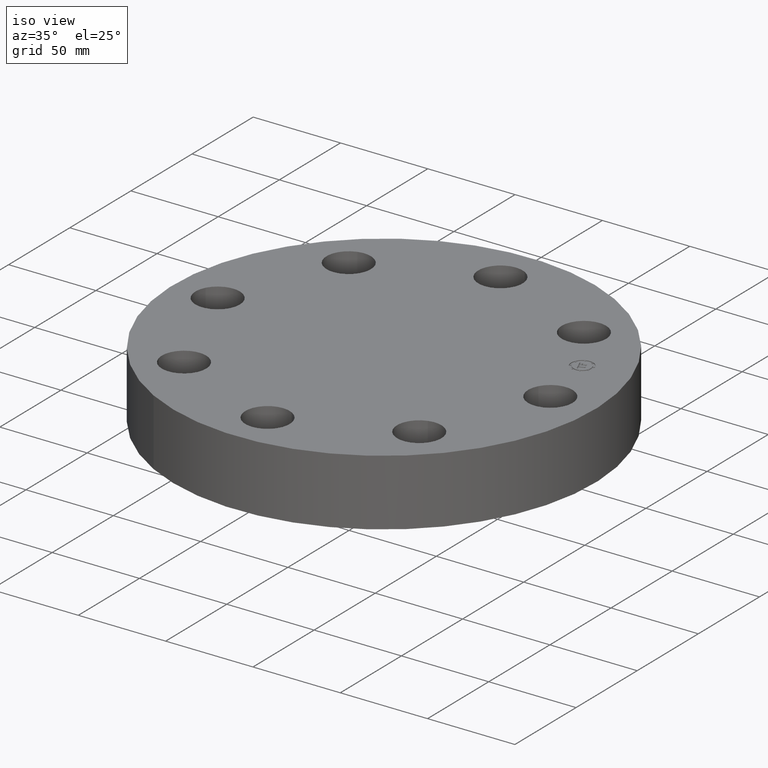
[diagram: clean part render]
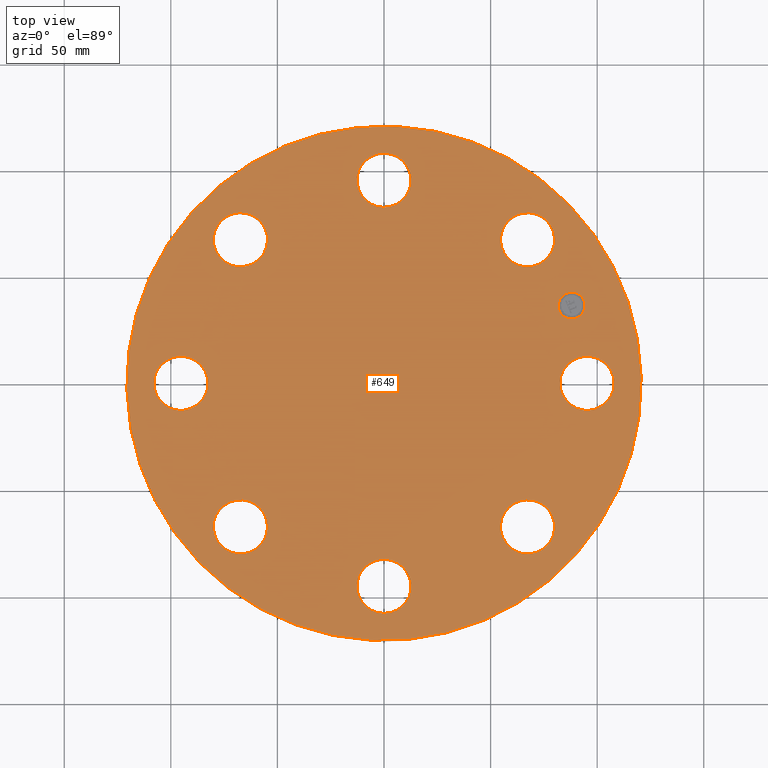
[diagram: tour spotlight — one face highlighted and labeled with its STEP entity id]
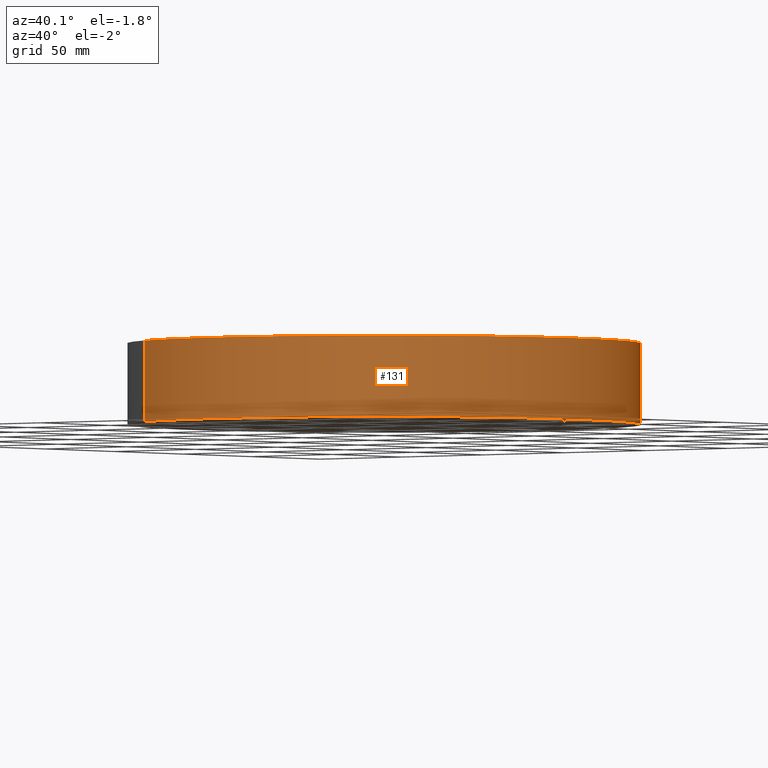
[diagram: tour spotlight — one face highlighted and labeled with its STEP entity id]
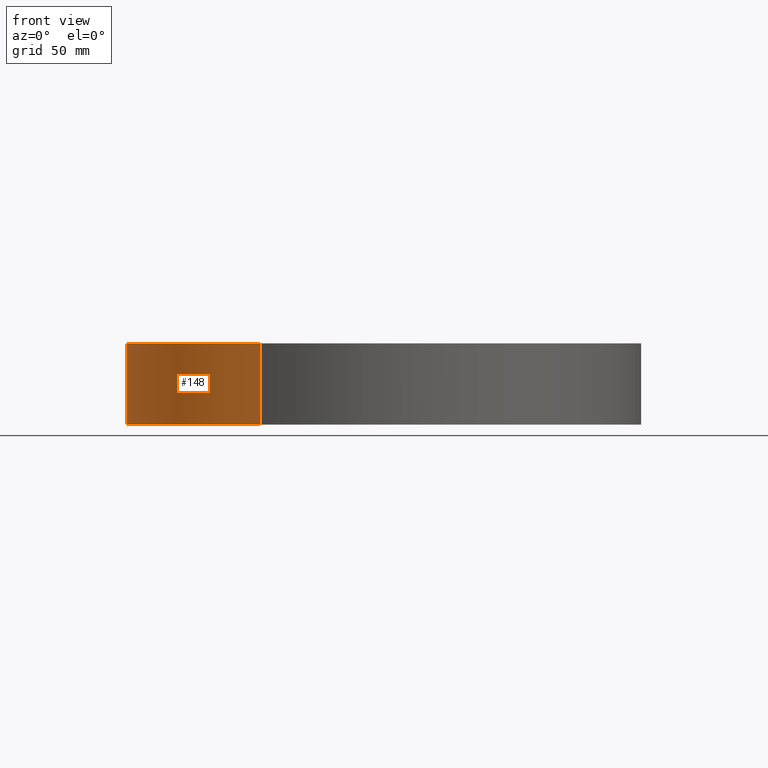
[diagram: tour spotlight — one face highlighted and labeled with its STEP entity id]
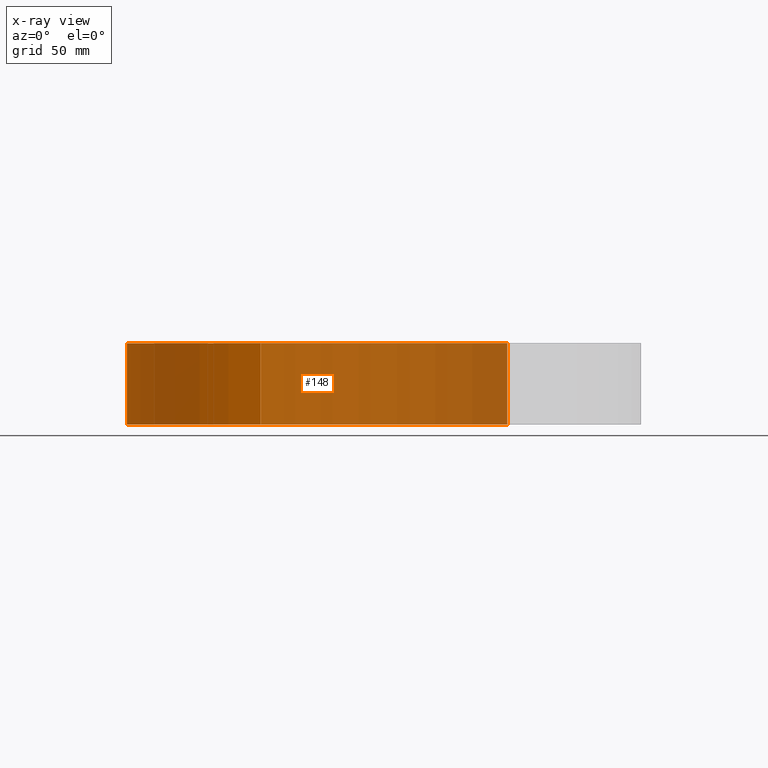
[diagram: x-ray of the same camera — body ghosted, this tour face saturated]
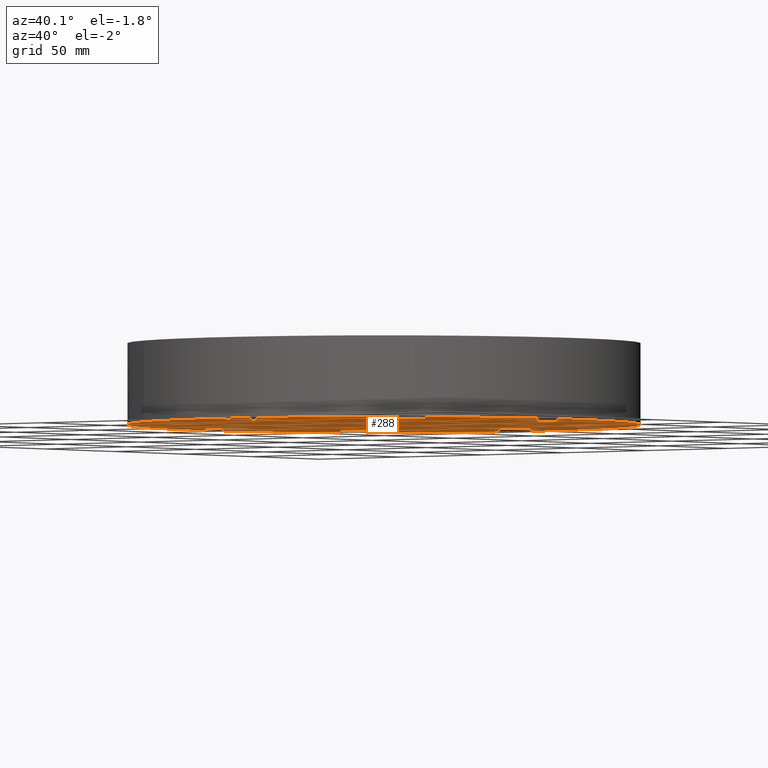
[diagram: tour spotlight — one face highlighted and labeled with its STEP entity id]
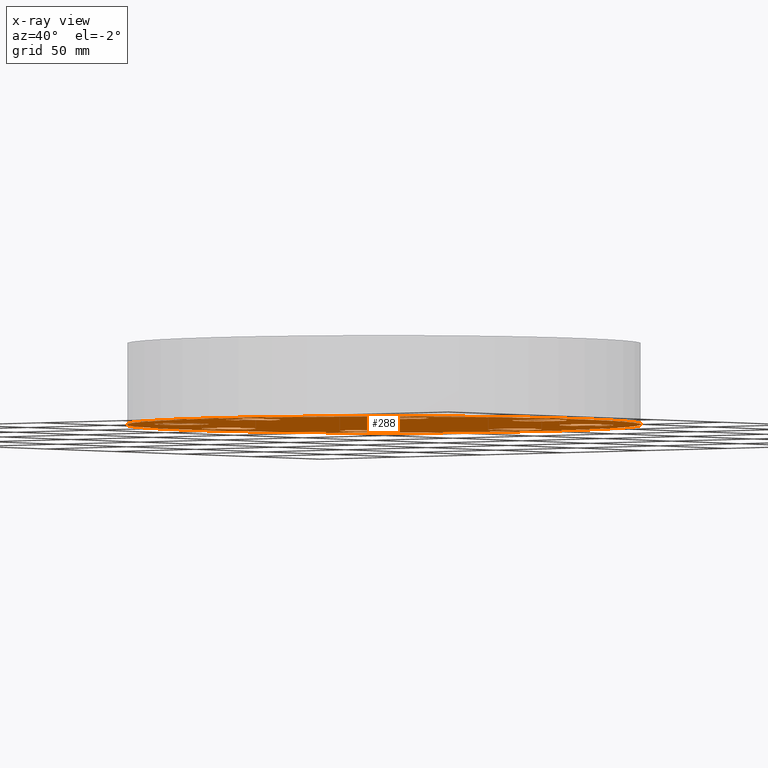
[diagram: x-ray of the same camera — body ghosted, this tour face saturated]
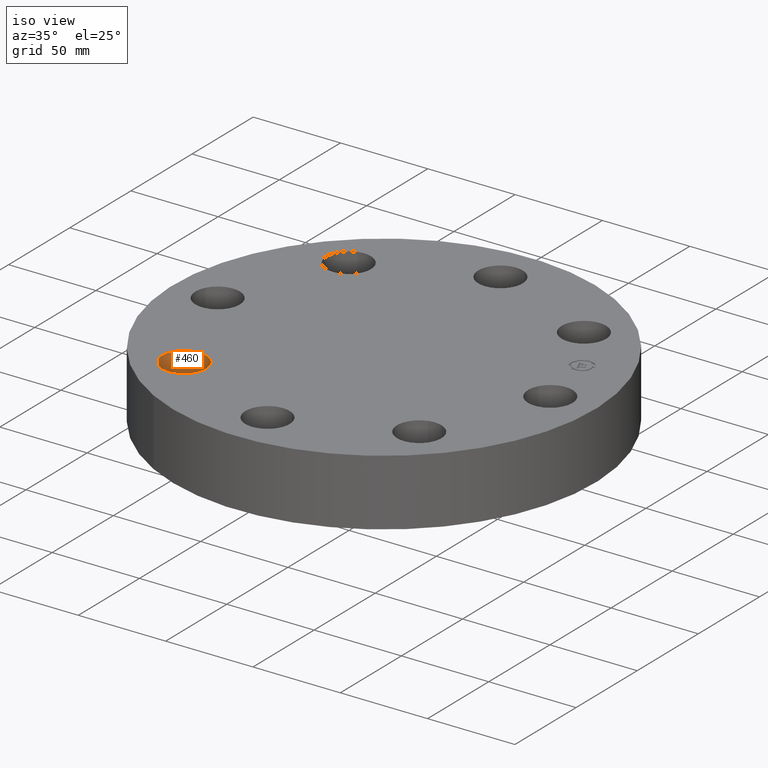
[diagram: tour spotlight — one face highlighted and labeled with its STEP entity id]
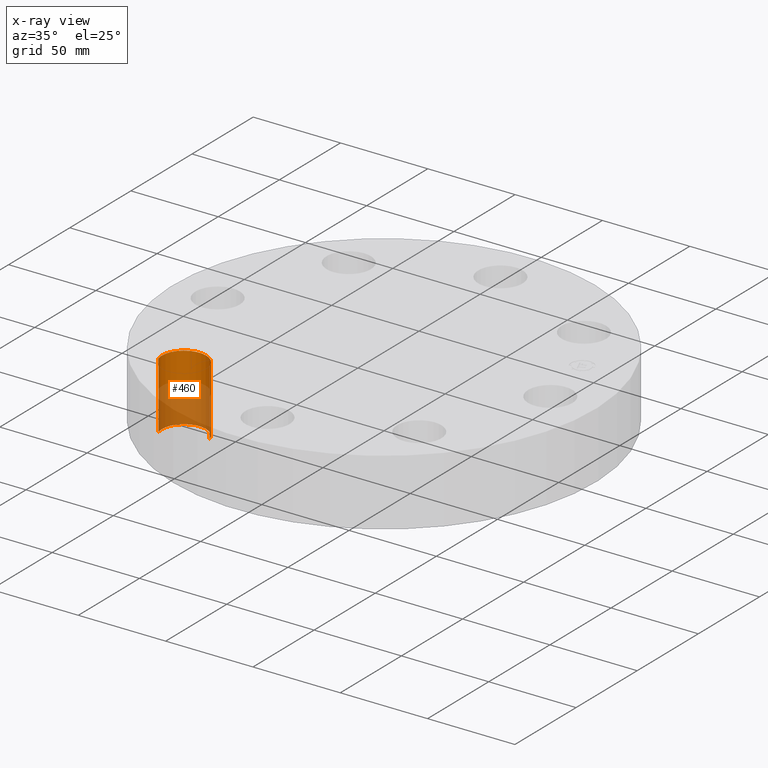
[diagram: x-ray of the same camera — body ghosted, this tour face saturated]
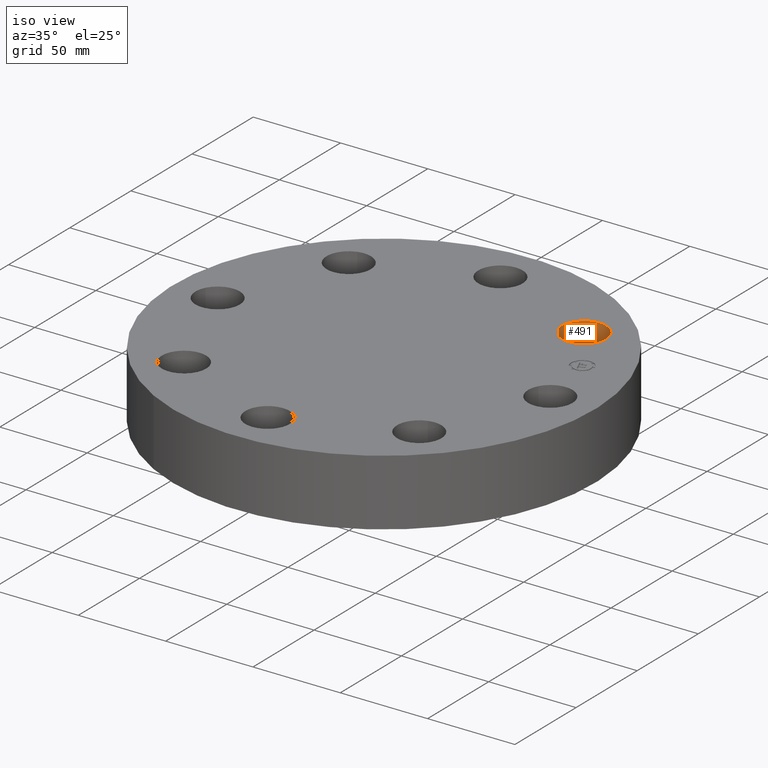
[diagram: tour spotlight — one face highlighted and labeled with its STEP entity id]
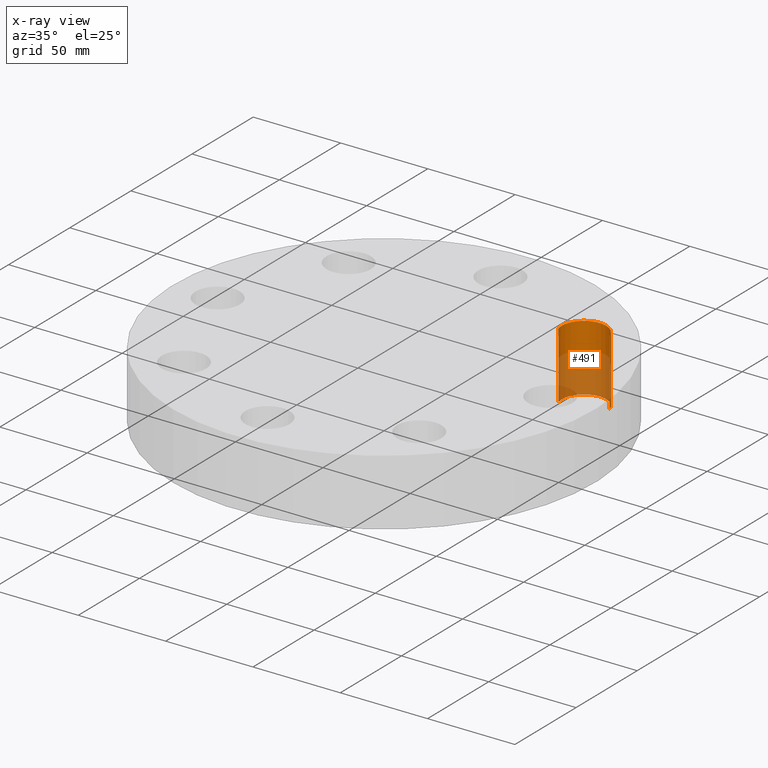
[diagram: x-ray of the same camera — body ghosted, this tour face saturated]
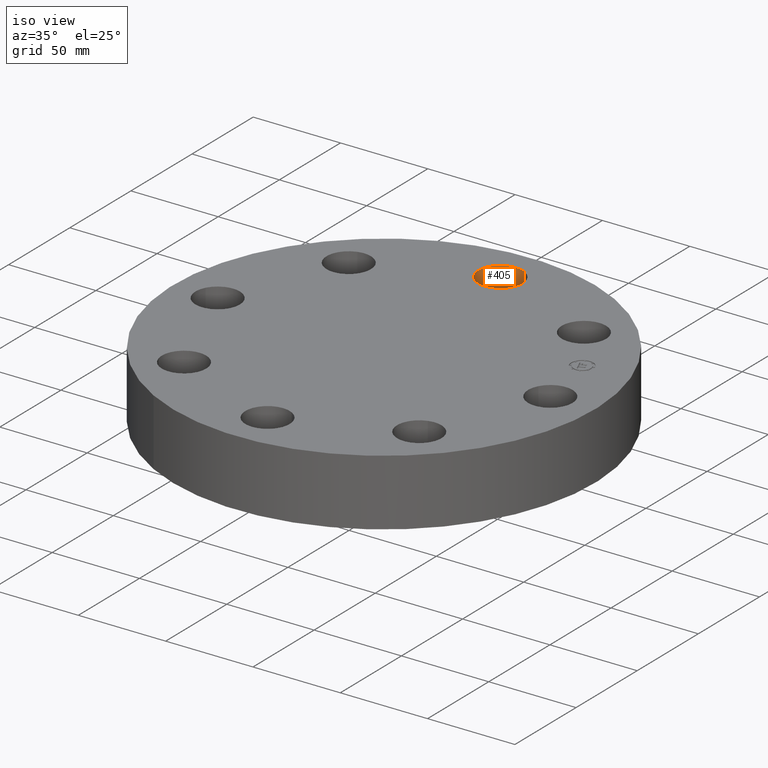
[diagram: tour spotlight — one face highlighted and labeled with its STEP entity id]
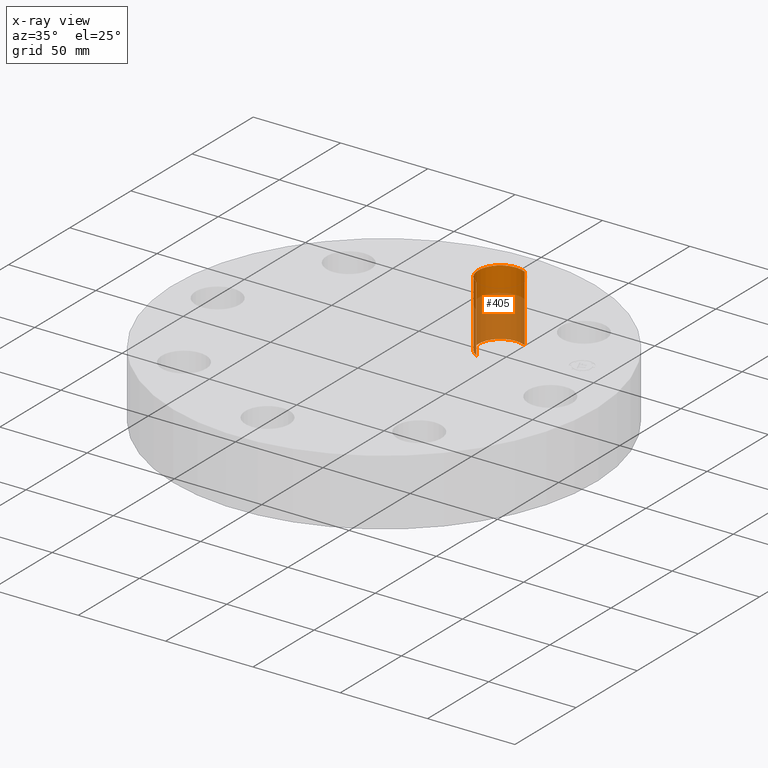
[diagram: x-ray of the same camera — body ghosted, this tour face saturated]
A machine part: a face-by-face anatomy tour. The part has 405 B-rep faces; the first image is the clean iso view, then the 7 largest visible faces are spotlighted one at a time (largest first), each with its STEP entity span.

Face 1 — top view, entity #649. In plain terms, the highlighted planar face has unit normal (0, 0, -1).
Definition (entity closure, byte-faithful):
#65=AXIS2_PLACEMENT_3D('Circle Axis2P3D',#63,#64,$) ;
#82=AXIS2_PLACEMENT_3D('Circle Axis2P3D',#80,#81,$) ;
#115=AXIS2_PLACEMENT_3D('Circle Axis2P3D',#113,#114,$) ;
#139=AXIS2_PLACEMENT_3D('Circle Axis2P3D',#137,#138,$) ;
#310=AXIS2_PLACEMENT_3D('Circle Axis2P3D',#308,#309,$) ;
#322=AXIS2_PLACEMENT_3D('Circle Axis2P3D',#320,#321,$) ;
#353=AXIS2_PLACEMENT_3D('Circle Axis2P3D',#351,#352,$) ;
#365=AXIS2_PLACEMENT_3D('Circle Axis2P3D',#363,#364,$) ;
#396=AXIS2_PLACEMENT_3D('Circle Axis2P3D',#394,#395,$) ;
#408=AXIS2_PLACEMENT_3D('Circle Axis2P3D',#406,#407,$) ;
#439=AXIS2_PLACEMENT_3D('Circle Axis2P3D',#437,#438,$) ;
#451=AXIS2_PLACEMENT_3D('Circle Axis2P3D',#449,#450,$) ;
#482=AXIS2_PLACEMENT_3D('Circle Axis2P3D',#480,#481,$) ;
#494=AXIS2_PLACEMENT_3D('Circle Axis2P3D',#492,#493,$) ;
#525=AXIS2_PLACEMENT_3D('Circle Axis2P3D',#523,#524,$) ;
#537=AXIS2_PLACEMENT_3D('Circle Axis2P3D',#535,#536,$) ;
#568=AXIS2_PLACEMENT_3D('Circle Axis2P3D',#566,#567,$) ;
#580=AXIS2_PLACEMENT_3D('Circle Axis2P3D',#578,#579,$) ;
#593=AXIS2_PLACEMENT_3D('Plane Axis2P3D',#590,#591,#592) ;
#633=AXIS2_PLACEMENT_3D('Circle Axis2P3D',#631,#632,$) ;
#642=AXIS2_PLACEMENT_3D('Circle Axis2P3D',#640,#641,$) ;
#46=CARTESIAN_POINT('Vertex',(3.31120871907,0.239712769303,1.50000000001)) ;
#60=CARTESIAN_POINT('Vertex',(4.18879128096,-0.239712769303,1.50000000001)) ;
#63=CARTESIAN_POINT('Axis2P3D Location',(3.75000000002,0.,1.50000000001)) ;
#80=CARTESIAN_POINT('Axis2P3D Location',(3.75000000002,0.,1.50000000001)) ;
#110=CARTESIAN_POINT('Vertex',(2.27727130838,4.168517169,1.50000000001)) ;
#113=CARTESIAN_POINT('Axis2P3D Location',(0.,0.,1.50000000001)) ;
#117=CARTESIAN_POINT('Vertex',(-2.27727130838,-4.168517169,1.50000000001)) ;
#137=CARTESIAN_POINT('Axis2P3D Location',(0.,0.,1.50000000001)) ;
#298=CARTESIAN_POINT('Vertex',(-2.51088066389,2.17187561447,1.50000000001)) ;
#305=CARTESIAN_POINT('Vertex',(-2.79242019503,3.13142524445,1.50000000001)) ;
#308=CARTESIAN_POINT('Axis2P3D Location',(-2.65165042946,2.65165042946,1.50000000001)) ;
#320=CARTESIAN_POINT('Axis2P3D Location',(-2.65165042946,2.65165042946,1.50000000001)) ;
#341=CARTESIAN_POINT('Vertex',(0.239712769303,-3.31120871907,1.50000000001)) ;
#348=CARTESIAN_POINT('Vertex',(-0.239712769303,-4.18879128096,1.50000000001)) ;
#351=CARTESIAN_POINT('Axis2P3D Location',(-3.29861194261E-016,-3.75000000002,1.50000000001)) ;
#363=CARTESIAN_POINT('Axis2P3D Location',(-3.29861194261E-016,-3.75000000002,1.50000000001)) ;
#384=CARTESIAN_POINT('Vertex',(-0.239712769303,3.31120871907,1.50000000001)) ;
#391=CARTESIAN_POINT('Vertex',(0.239712769303,4.18879128096,1.50000000001)) ;
#394=CARTESIAN_POINT('Axis2P3D Location',(-6.88863824523E-016,3.75000000002,1.50000000001)) ;
#406=CARTESIAN_POINT('Axis2P3D Location',(-6.88863824523E-016,3.75000000002,1.50000000001)) ;
#427=CARTESIAN_POINT('Vertex',(-2.17187561447,-2.51088066389,1.50000000001)) ;
#434=CARTESIAN_POINT('Vertex',(-3.13142524445,-2.79242019503,1.50000000001)) ;
#437=CARTESIAN_POINT('Axis2P3D Location',(-2.65165042946,-2.65165042946,1.50000000001)) ;
#449=CARTESIAN_POINT('Axis2P3D Location',(-2.65165042946,-2.65165042946,1.50000000001)) ;
#470=CARTESIAN_POINT('Vertex',(2.17187561447,2.51088066389,1.50000000001)) ;
#477=CARTESIAN_POINT('Vertex',(3.13142524445,2.79242019503,1.50000000001)) ;
#480=CARTESIAN_POINT('Axis2P3D Location',(2.65165042946,2.65165042946,1.50000000001)) ;
#492=CARTESIAN_POINT('Axis2P3D Location',(2.65165042946,2.65165042946,1.50000000001)) ;
#513=CARTESIAN_POINT('Vertex',(-3.31120871907,-0.239712769303,1.50000000001)) ;
#520=CARTESIAN_POINT('Vertex',(-4.18879128096,0.239712769303,1.50000000001)) ;
#523=CARTESIAN_POINT('Axis2P3D Location',(-3.75000000002,-4.59242549682E-016,1.50000000001)) ;
#535=CARTESIAN_POINT('Axis2P3D Location',(-3.75000000002,-4.59242549682E-016,1.50000000001)) ;
#556=CARTESIAN_POINT('Vertex',(2.51088066389,-2.17187561447,1.50000000001)) ;
#563=CARTESIAN_POINT('Vertex',(2.79242019503,-3.13142524445,1.50000000001)) ;
#566=CARTESIAN_POINT('Axis2P3D Location',(2.65165042946,-2.65165042946,1.50000000001)) ;
#578=CARTESIAN_POINT('Axis2P3D Location',(2.65165042946,-2.65165042946,1.50000000001)) ;
#590=CARTESIAN_POINT('Axis2P3D Location',(0.,4.75000000002,1.50000000001)) ;
#631=CARTESIAN_POINT('Axis2P3D Location',(3.46454824693,1.43506287137,1.50000000001)) ;
#635=CARTESIAN_POINT('Vertex',(3.36983409742,1.66372305567,1.50000000001)) ;
#637=CARTESIAN_POINT('Vertex',(3.55926239644,1.20640268708,1.50000000001)) ;
#640=CARTESIAN_POINT('Axis2P3D Location',(3.46454824693,1.43506287137,1.50000000001)) ;
#64=DIRECTION('Axis2P3D Direction',(0.,-0.,-0.0393700787402)) ;
#81=DIRECTION('Axis2P3D Direction',(0.,-0.,-0.0393700787402)) ;
#114=DIRECTION('Axis2P3D Direction',(0.,0.,-0.0393700787402)) ;
#138=DIRECTION('Axis2P3D Direction',(0.,0.,-0.0393700787402)) ;
#309=DIRECTION('Axis2P3D Direction',(0.,0.,-0.0393700787402)) ;
#321=DIRECTION('Axis2P3D Direction',(0.,0.,-0.0393700787402)) ;
#352=DIRECTION('Axis2P3D Direction',(0.,-0.,-0.0393700787402)) ;
#364=DIRECTION('Axis2P3D Direction',(0.,-0.,-0.0393700787402)) ;
#395=DIRECTION('Axis2P3D Direction',(0.,0.,-0.0393700787402)) ;
#407=DIRECTION('Axis2P3D Direction',(0.,0.,-0.0393700787402)) ;
#438=DIRECTION('Axis2P3D Direction',(-0.,0.,-0.0393700787402)) ;
#450=DIRECTION('Axis2P3D Direction',(-0.,0.,-0.0393700787402)) ;
#481=DIRECTION('Axis2P3D Direction',(0.,0.,-0.0393700787402)) ;
#493=DIRECTION('Axis2P3D Direction',(0.,0.,-0.0393700787402)) ;
#524=DIRECTION('Axis2P3D Direction',(-0.,0.,-0.0393700787402)) ;
#536=DIRECTION('Axis2P3D Direction',(-0.,0.,-0.0393700787402)) ;
#567=DIRECTION('Axis2P3D Direction',(0.,-0.,-0.0393700787402)) ;
#579=DIRECTION('Axis2P3D Direction',(0.,-0.,-0.0393700787402)) ;
#591=DIRECTION('Axis2P3D Direction',(0.,0.,-0.0393700787402)) ;
#592=DIRECTION('Axis2P3D XDirection',(0.0393700787402,0.,0.)) ;
#632=DIRECTION('Axis2P3D Direction',(0.,0.,-0.0393700787402)) ;
#641=DIRECTION('Axis2P3D Direction',(0.,0.,-0.0393700787402)) ;
#596=ORIENTED_EDGE('',*,*,#119,.F.) ;
#597=ORIENTED_EDGE('',*,*,#141,.F.) ;
#600=ORIENTED_EDGE('',*,*,#67,.T.) ;
#601=ORIENTED_EDGE('',*,*,#84,.T.) ;
#604=ORIENTED_EDGE('',*,*,#582,.T.) ;
#605=ORIENTED_EDGE('',*,*,#570,.T.) ;
#608=ORIENTED_EDGE('',*,*,#367,.T.) ;
#609=ORIENTED_EDGE('',*,*,#355,.T.) ;
#612=ORIENTED_EDGE('',*,*,#453,.T.) ;
#613=ORIENTED_EDGE('',*,*,#441,.T.) ;
#616=ORIENTED_EDGE('',*,*,#539,.T.) ;
#617=ORIENTED_EDGE('',*,*,#527,.T.) ;
#620=ORIENTED_EDGE('',*,*,#324,.T.) ;
#621=ORIENTED_EDGE('',*,*,#312,.T.) ;
#624=ORIENTED_EDGE('',*,*,#410,.T.) ;
#625=ORIENTED_EDGE('',*,*,#398,.T.) ;
#628=ORIENTED_EDGE('',*,*,#496,.T.) ;
#629=ORIENTED_EDGE('',*,*,#484,.T.) ;
#646=ORIENTED_EDGE('',*,*,#639,.T.) ;
#647=ORIENTED_EDGE('',*,*,#644,.T.) ;
#602=FACE_BOUND('',#599,.T.) ;
#606=FACE_BOUND('',#603,.T.) ;
#610=FACE_BOUND('',#607,.T.) ;
#614=FACE_BOUND('',#611,.T.) ;
#618=FACE_BOUND('',#615,.T.) ;
#622=FACE_BOUND('',#619,.T.) ;
#626=FACE_BOUND('',#623,.T.) ;
#630=FACE_BOUND('',#627,.T.) ;
#648=FACE_BOUND('',#645,.T.) ;
#649=ADVANCED_FACE('PartBody',(#598,#602,#606,#610,#614,#618,#622,#626,#630,#648),#594,.F.) ;
#66=CIRCLE('generated circle',#65,0.500000000002) ;
#83=CIRCLE('generated circle',#82,0.500000000002) ;
#116=CIRCLE('generated circle',#115,4.75000000002) ;
#140=CIRCLE('generated circle',#139,4.75000000002) ;
#311=CIRCLE('generated circle',#310,0.500000000002) ;
#323=CIRCLE('generated circle',#322,0.500000000002) ;
#354=CIRCLE('generated circle',#353,0.500000000002) ;
#366=CIRCLE('generated circle',#365,0.500000000002) ;
#397=CIRCLE('generated circle',#396,0.500000000002) ;
#409=CIRCLE('generated circle',#408,0.500000000002) ;
#440=CIRCLE('generated circle',#439,0.500000000002) ;
#452=CIRCLE('generated circle',#451,0.500000000002) ;
#483=CIRCLE('generated circle',#482,0.500000000002) ;
#495=CIRCLE('generated circle',#494,0.500000000002) ;
#526=CIRCLE('generated circle',#525,0.500000000002) ;
#538=CIRCLE('generated circle',#537,0.500000000002) ;
#569=CIRCLE('generated circle',#568,0.500000000002) ;
#581=CIRCLE('generated circle',#580,0.500000000002) ;
#634=CIRCLE('generated circle',#633,0.247500000001) ;
#643=CIRCLE('generated circle',#642,0.247500000001) ;
#67=EDGE_CURVE('',#47,#61,#66,.T.) ;
#84=EDGE_CURVE('',#61,#47,#83,.T.) ;
#119=EDGE_CURVE('',#111,#118,#116,.T.) ;
#141=EDGE_CURVE('',#118,#111,#140,.T.) ;
#312=EDGE_CURVE('',#299,#306,#311,.T.) ;
#324=EDGE_CURVE('',#306,#299,#323,.T.) ;
#355=EDGE_CURVE('',#342,#349,#354,.T.) ;
#367=EDGE_CURVE('',#349,#342,#366,.T.) ;
#398=EDGE_CURVE('',#385,#392,#397,.T.) ;
#410=EDGE_CURVE('',#392,#385,#409,.T.) ;
#441=EDGE_CURVE('',#428,#435,#440,.T.) ;
#453=EDGE_CURVE('',#435,#428,#452,.T.) ;
#484=EDGE_CURVE('',#471,#478,#483,.T.) ;
#496=EDGE_CURVE('',#478,#471,#495,.T.) ;
#527=EDGE_CURVE('',#514,#521,#526,.T.) ;
#539=EDGE_CURVE('',#521,#514,#538,.T.) ;
#570=EDGE_CURVE('',#557,#564,#569,.T.) ;
#582=EDGE_CURVE('',#564,#557,#581,.T.) ;
#639=EDGE_CURVE('',#636,#638,#634,.T.) ;
#644=EDGE_CURVE('',#638,#636,#643,.T.) ;
#595=EDGE_LOOP('',(#596,#597)) ;
#599=EDGE_LOOP('',(#600,#601)) ;
#603=EDGE_LOOP('',(#604,#605)) ;
#607=EDGE_LOOP('',(#608,#609)) ;
#611=EDGE_LOOP('',(#612,#613)) ;
#615=EDGE_LOOP('',(#616,#617)) ;
#619=EDGE_LOOP('',(#620,#621)) ;
#623=EDGE_LOOP('',(#624,#625)) ;
#627=EDGE_LOOP('',(#628,#629)) ;
#645=EDGE_LOOP('',(#646,#647)) ;
#598=FACE_OUTER_BOUND('',#595,.T.) ;
#594=PLANE('',#593) ;
#47=VERTEX_POINT('',#46) ;
#61=VERTEX_POINT('',#60) ;
#111=VERTEX_POINT('',#110) ;
#118=VERTEX_POINT('',#117) ;
#299=VERTEX_POINT('',#298) ;
#306=VERTEX_POINT('',#305) ;
#342=VERTEX_POINT('',#341) ;
#349=VERTEX_POINT('',#348) ;
#385=VERTEX_POINT('',#384) ;
#392=VERTEX_POINT('',#391) ;
#428=VERTEX_POINT('',#427) ;
#435=VERTEX_POINT('',#434) ;
#471=VERTEX_POINT('',#470) ;
#478=VERTEX_POINT('',#477) ;
#514=VERTEX_POINT('',#513) ;
#521=VERTEX_POINT('',#520) ;
#557=VERTEX_POINT('',#556) ;
#564=VERTEX_POINT('',#563) ;
#636=VERTEX_POINT('',#635) ;
#638=VERTEX_POINT('',#637) ;

Face 2 — auxiliary view, entity #131. In plain terms, the highlighted cylindrical surface (partial cylindrical patch) has radius 120.65 mm, axis along (0, 0, -1).
Definition (entity closure, byte-faithful):
#95=AXIS2_PLACEMENT_3D('Cylinder Axis2P3D',#92,#93,#94) ;
#99=AXIS2_PLACEMENT_3D('Circle Axis2P3D',#97,#98,$) ;
#115=AXIS2_PLACEMENT_3D('Circle Axis2P3D',#113,#114,$) ;
#92=CARTESIAN_POINT('Axis2P3D Location',(0.,0.,0.750000000003)) ;
#97=CARTESIAN_POINT('Axis2P3D Location',(0.,0.,5.59482469102E-016)) ;
#101=CARTESIAN_POINT('Vertex',(2.27727130838,4.168517169,5.59482469102E-016)) ;
#103=CARTESIAN_POINT('Vertex',(-2.27727130838,-4.168517169,5.59482469102E-016)) ;
#106=CARTESIAN_POINT('Line Origine',(2.27727130838,4.168517169,0.750000000003)) ;
#110=CARTESIAN_POINT('Vertex',(2.27727130838,4.168517169,1.50000000001)) ;
#113=CARTESIAN_POINT('Axis2P3D Location',(0.,0.,1.50000000001)) ;
#117=CARTESIAN_POINT('Vertex',(-2.27727130838,-4.168517169,1.50000000001)) ;
#120=CARTESIAN_POINT('Line Origine',(-2.27727130838,-4.168517169,0.750000000003)) ;
#93=DIRECTION('Axis2P3D Direction',(0.,0.,-0.0393700787402)) ;
#94=DIRECTION('Axis2P3D XDirection',(-0.0188750212049,-0.0345504945626,0.)) ;
#98=DIRECTION('Axis2P3D Direction',(0.,0.,-0.0393700787402)) ;
#107=DIRECTION('Vector Direction',(0.,0.,-0.0393700787402)) ;
#114=DIRECTION('Axis2P3D Direction',(0.,0.,-0.0393700787402)) ;
#121=DIRECTION('Vector Direction',(0.,0.,-0.0393700787402)) ;
#108=VECTOR('Line Direction',#107,0.0393700787402) ;
#122=VECTOR('Line Direction',#121,0.0393700787402) ;
#126=ORIENTED_EDGE('',*,*,#105,.F.) ;
#127=ORIENTED_EDGE('',*,*,#112,.T.) ;
#128=ORIENTED_EDGE('',*,*,#119,.T.) ;
#129=ORIENTED_EDGE('',*,*,#124,.F.) ;
#131=ADVANCED_FACE('PartBody',(#130),#96,.T.) ;
#100=CIRCLE('generated circle',#99,4.75000000002) ;
#116=CIRCLE('generated circle',#115,4.75000000002) ;
#96=CYLINDRICAL_SURFACE('generated cylinder',#95,4.75000000002) ;
#105=EDGE_CURVE('',#102,#104,#100,.T.) ;
#112=EDGE_CURVE('',#102,#111,#109,.F.) ;
#119=EDGE_CURVE('',#111,#118,#116,.T.) ;
#124=EDGE_CURVE('',#104,#118,#123,.F.) ;
#125=EDGE_LOOP('',(#126,#127,#128,#129)) ;
#130=FACE_OUTER_BOUND('',#125,.T.) ;
#109=LINE('Line',#106,#108) ;
#123=LINE('Line',#120,#122) ;
#102=VERTEX_POINT('',#101) ;
#104=VERTEX_POINT('',#103) ;
#111=VERTEX_POINT('',#110) ;
#118=VERTEX_POINT('',#117) ;

Face 3 — front view, entity #148. An x-ray twin of the same camera follows (body ghosted, this face saturated) — the face is partly hidden behind the body. In plain terms, the highlighted cylindrical surface (partial cylindrical patch) has radius 120.65 mm, axis along (0, 0, -1).
Definition (entity closure, byte-faithful):
#95=AXIS2_PLACEMENT_3D('Cylinder Axis2P3D',#92,#93,#94) ;
#134=AXIS2_PLACEMENT_3D('Circle Axis2P3D',#132,#133,$) ;
#139=AXIS2_PLACEMENT_3D('Circle Axis2P3D',#137,#138,$) ;
#92=CARTESIAN_POINT('Axis2P3D Location',(0.,0.,0.750000000003)) ;
#101=CARTESIAN_POINT('Vertex',(2.27727130838,4.168517169,5.59482469102E-016)) ;
#103=CARTESIAN_POINT('Vertex',(-2.27727130838,-4.168517169,5.59482469102E-016)) ;
#106=CARTESIAN_POINT('Line Origine',(2.27727130838,4.168517169,0.750000000003)) ;
#110=CARTESIAN_POINT('Vertex',(2.27727130838,4.168517169,1.50000000001)) ;
#117=CARTESIAN_POINT('Vertex',(-2.27727130838,-4.168517169,1.50000000001)) ;
#120=CARTESIAN_POINT('Line Origine',(-2.27727130838,-4.168517169,0.750000000003)) ;
#132=CARTESIAN_POINT('Axis2P3D Location',(0.,0.,5.59482469102E-016)) ;
#137=CARTESIAN_POINT('Axis2P3D Location',(0.,0.,1.50000000001)) ;
#93=DIRECTION('Axis2P3D Direction',(0.,0.,-0.0393700787402)) ;
#94=DIRECTION('Axis2P3D XDirection',(-0.0188750212049,-0.0345504945626,0.)) ;
#107=DIRECTION('Vector Direction',(0.,0.,-0.0393700787402)) ;
#121=DIRECTION('Vector Direction',(0.,0.,-0.0393700787402)) ;
#133=DIRECTION('Axis2P3D Direction',(0.,0.,-0.0393700787402)) ;
#138=DIRECTION('Axis2P3D Direction',(0.,0.,-0.0393700787402)) ;
#108=VECTOR('Line Direction',#107,0.0393700787402) ;
#122=VECTOR('Line Direction',#121,0.0393700787402) ;
#143=ORIENTED_EDGE('',*,*,#136,.F.) ;
#144=ORIENTED_EDGE('',*,*,#124,.T.) ;
#145=ORIENTED_EDGE('',*,*,#141,.T.) ;
#146=ORIENTED_EDGE('',*,*,#112,.F.) ;
#148=ADVANCED_FACE('PartBody',(#147),#96,.T.) ;
#135=CIRCLE('generated circle',#134,4.75000000002) ;
#140=CIRCLE('generated circle',#139,4.75000000002) ;
#96=CYLINDRICAL_SURFACE('generated cylinder',#95,4.75000000002) ;
#112=EDGE_CURVE('',#102,#111,#109,.F.) ;
#124=EDGE_CURVE('',#104,#118,#123,.F.) ;
#136=EDGE_CURVE('',#104,#102,#135,.T.) ;
#141=EDGE_CURVE('',#118,#111,#140,.T.) ;
#142=EDGE_LOOP('',(#143,#144,#145,#146)) ;
#147=FACE_OUTER_BOUND('',#142,.T.) ;
#109=LINE('Line',#106,#108) ;
#123=LINE('Line',#120,#122) ;
#102=VERTEX_POINT('',#101) ;
#104=VERTEX_POINT('',#103) ;
#111=VERTEX_POINT('',#110) ;
#118=VERTEX_POINT('',#117) ;

Face 4 — auxiliary view, entity #288. An x-ray twin of the same camera follows (body ghosted, this face saturated) — the face is partly hidden behind the body. In plain terms, the highlighted planar face has unit normal (0, 0, -1).
Definition (entity closure, byte-faithful):
#51=AXIS2_PLACEMENT_3D('Circle Axis2P3D',#49,#50,$) ;
#77=AXIS2_PLACEMENT_3D('Circle Axis2P3D',#75,#76,$) ;
#99=AXIS2_PLACEMENT_3D('Circle Axis2P3D',#97,#98,$) ;
#134=AXIS2_PLACEMENT_3D('Circle Axis2P3D',#132,#133,$) ;
#152=AXIS2_PLACEMENT_3D('Plane Axis2P3D',#149,#150,#151) ;
#164=AXIS2_PLACEMENT_3D('Circle Axis2P3D',#162,#163,$) ;
#173=AXIS2_PLACEMENT_3D('Circle Axis2P3D',#171,#172,$) ;
#182=AXIS2_PLACEMENT_3D('Circle Axis2P3D',#180,#181,$) ;
#191=AXIS2_PLACEMENT_3D('Circle Axis2P3D',#189,#190,$) ;
#200=AXIS2_PLACEMENT_3D('Circle Axis2P3D',#198,#199,$) ;
#209=AXIS2_PLACEMENT_3D('Circle Axis2P3D',#207,#208,$) ;
#218=AXIS2_PLACEMENT_3D('Circle Axis2P3D',#216,#217,$) ;
#227=AXIS2_PLACEMENT_3D('Circle Axis2P3D',#225,#226,$) ;
#236=AXIS2_PLACEMENT_3D('Circle Axis2P3D',#234,#235,$) ;
#245=AXIS2_PLACEMENT_3D('Circle Axis2P3D',#243,#244,$) ;
#254=AXIS2_PLACEMENT_3D('Circle Axis2P3D',#252,#253,$) ;
#263=AXIS2_PLACEMENT_3D('Circle Axis2P3D',#261,#262,$) ;
#272=AXIS2_PLACEMENT_3D('Circle Axis2P3D',#270,#271,$) ;
#281=AXIS2_PLACEMENT_3D('Circle Axis2P3D',#279,#280,$) ;
#44=CARTESIAN_POINT('Vertex',(3.31120871907,0.239712769303,0.)) ;
#49=CARTESIAN_POINT('Axis2P3D Location',(3.75000000002,0.,0.)) ;
#53=CARTESIAN_POINT('Vertex',(4.18879128096,-0.239712769303,0.)) ;
#75=CARTESIAN_POINT('Axis2P3D Location',(3.75000000002,0.,0.)) ;
#97=CARTESIAN_POINT('Axis2P3D Location',(0.,0.,5.59482469102E-016)) ;
#101=CARTESIAN_POINT('Vertex',(2.27727130838,4.168517169,5.59482469102E-016)) ;
#103=CARTESIAN_POINT('Vertex',(-2.27727130838,-4.168517169,5.59482469102E-016)) ;
#132=CARTESIAN_POINT('Axis2P3D Location',(0.,0.,5.59482469102E-016)) ;
#149=CARTESIAN_POINT('Axis2P3D Location',(0.,0.,0.)) ;
#162=CARTESIAN_POINT('Axis2P3D Location',(2.65165042946,-2.65165042946,0.)) ;
#166=CARTESIAN_POINT('Vertex',(2.51088066389,-2.17187561447,0.)) ;
#168=CARTESIAN_POINT('Vertex',(2.79242019503,-3.13142524445,0.)) ;
#171=CARTESIAN_POINT('Axis2P3D Location',(2.65165042946,-2.65165042946,0.)) ;
#180=CARTESIAN_POINT('Axis2P3D Location',(-3.49676543189E-016,-3.75000000002,0.)) ;
#184=CARTESIAN_POINT('Vertex',(0.239712769303,-3.31120871907,0.)) ;
#186=CARTESIAN_POINT('Vertex',(-0.239712769303,-4.18879128096,0.)) ;
#189=CARTESIAN_POINT('Axis2P3D Location',(-4.19611851827E-016,-3.75000000002,0.)) ;
#198=CARTESIAN_POINT('Axis2P3D Location',(-2.65165042946,-2.65165042946,0.)) ;
#202=CARTESIAN_POINT('Vertex',(-2.17187561447,-2.51088066389,0.)) ;
#204=CARTESIAN_POINT('Vertex',(-3.13142524445,-2.79242019503,0.)) ;
#207=CARTESIAN_POINT('Axis2P3D Location',(-2.65165042946,-2.65165042946,0.)) ;
#216=CARTESIAN_POINT('Axis2P3D Location',(-3.75000000002,-3.49676543189E-016,0.)) ;
#220=CARTESIAN_POINT('Vertex',(-3.31120871907,-0.239712769303,0.)) ;
#222=CARTESIAN_POINT('Vertex',(-4.18879128096,0.239712769303,0.)) ;
#225=CARTESIAN_POINT('Axis2P3D Location',(-3.75000000002,-2.79741234551E-016,0.)) ;
#234=CARTESIAN_POINT('Axis2P3D Location',(-2.65165042946,2.65165042946,0.)) ;
#238=CARTESIAN_POINT('Vertex',(-2.51088066389,2.17187561447,0.)) ;
#240=CARTESIAN_POINT('Vertex',(-2.79242019503,3.13142524445,0.)) ;
#243=CARTESIAN_POINT('Axis2P3D Location',(-2.65165042946,2.65165042946,0.)) ;
#252=CARTESIAN_POINT('Axis2P3D Location',(-6.2941777774E-016,3.75000000002,0.)) ;
#256=CARTESIAN_POINT('Vertex',(-0.239712769303,3.31120871907,0.)) ;
#258=CARTESIAN_POINT('Vertex',(0.239712769303,4.18879128096,0.)) ;
#261=CARTESIAN_POINT('Axis2P3D Location',(-6.2941777774E-016,3.75000000002,0.)) ;
#270=CARTESIAN_POINT('Axis2P3D Location',(2.65165042946,2.65165042946,0.)) ;
#274=CARTESIAN_POINT('Vertex',(2.17187561447,2.51088066389,0.)) ;
#276=CARTESIAN_POINT('Vertex',(3.13142524445,2.79242019503,0.)) ;
#279=CARTESIAN_POINT('Axis2P3D Location',(2.65165042946,2.65165042946,0.)) ;
#50=DIRECTION('Axis2P3D Direction',(0.,-0.,-0.0393700787402)) ;
#76=DIRECTION('Axis2P3D Direction',(0.,-0.,-0.0393700787402)) ;
#98=DIRECTION('Axis2P3D Direction',(0.,0.,-0.0393700787402)) ;
#133=DIRECTION('Axis2P3D Direction',(0.,0.,-0.0393700787402)) ;
#150=DIRECTION('Axis2P3D Direction',(0.,0.,-0.0393700787402)) ;
#151=DIRECTION('Axis2P3D XDirection',(0.0393700787402,0.,0.)) ;
#163=DIRECTION('Axis2P3D Direction',(0.,0.,-0.0393700787402)) ;
#172=DIRECTION('Axis2P3D Direction',(0.,0.,-0.0393700787402)) ;
#181=DIRECTION('Axis2P3D Direction',(0.,0.,-0.0393700787402)) ;
#190=DIRECTION('Axis2P3D Direction',(0.,0.,-0.0393700787402)) ;
#199=DIRECTION('Axis2P3D Direction',(0.,0.,-0.0393700787402)) ;
#208=DIRECTION('Axis2P3D Direction',(0.,0.,-0.0393700787402)) ;
#217=DIRECTION('Axis2P3D Direction',(0.,0.,-0.0393700787402)) ;
#226=DIRECTION('Axis2P3D Direction',(0.,0.,-0.0393700787402)) ;
#235=DIRECTION('Axis2P3D Direction',(0.,0.,-0.0393700787402)) ;
#244=DIRECTION('Axis2P3D Direction',(0.,0.,-0.0393700787402)) ;
#253=DIRECTION('Axis2P3D Direction',(0.,0.,-0.0393700787402)) ;
#262=DIRECTION('Axis2P3D Direction',(0.,0.,-0.0393700787402)) ;
#271=DIRECTION('Axis2P3D Direction',(0.,0.,-0.0393700787402)) ;
#280=DIRECTION('Axis2P3D Direction',(0.,0.,-0.0393700787402)) ;
#155=ORIENTED_EDGE('',*,*,#105,.T.) ;
#156=ORIENTED_EDGE('',*,*,#136,.T.) ;
#159=ORIENTED_EDGE('',*,*,#79,.F.) ;
#160=ORIENTED_EDGE('',*,*,#55,.F.) ;
#177=ORIENTED_EDGE('',*,*,#170,.F.) ;
#178=ORIENTED_EDGE('',*,*,#175,.F.) ;
#195=ORIENTED_EDGE('',*,*,#188,.F.) ;
#196=ORIENTED_EDGE('',*,*,#193,.F.) ;
#213=ORIENTED_EDGE('',*,*,#206,.F.) ;
#214=ORIENTED_EDGE('',*,*,#211,.F.) ;
#231=ORIENTED_EDGE('',*,*,#224,.F.) ;
#232=ORIENTED_EDGE('',*,*,#229,.F.) ;
#249=ORIENTED_EDGE('',*,*,#242,.F.) ;
#250=ORIENTED_EDGE('',*,*,#247,.F.) ;
#267=ORIENTED_EDGE('',*,*,#260,.F.) ;
#268=ORIENTED_EDGE('',*,*,#265,.F.) ;
#285=ORIENTED_EDGE('',*,*,#278,.F.) ;
#286=ORIENTED_EDGE('',*,*,#283,.F.) ;
#161=FACE_BOUND('',#158,.T.) ;
#179=FACE_BOUND('',#176,.T.) ;
#197=FACE_BOUND('',#194,.T.) ;
#215=FACE_BOUND('',#212,.T.) ;
#233=FACE_BOUND('',#230,.T.) ;
#251=FACE_BOUND('',#248,.T.) ;
#269=FACE_BOUND('',#266,.T.) ;
#287=FACE_BOUND('',#284,.T.) ;
#288=ADVANCED_FACE('PartBody',(#157,#161,#179,#197,#215,#233,#251,#269,#287),#153,.T.) ;
#52=CIRCLE('generated circle',#51,0.500000000002) ;
#78=CIRCLE('generated circle',#77,0.500000000002) ;
#100=CIRCLE('generated circle',#99,4.75000000002) ;
#135=CIRCLE('generated circle',#134,4.75000000002) ;
#165=CIRCLE('generated circle',#164,0.500000000002) ;
#174=CIRCLE('generated circle',#173,0.500000000002) ;
#183=CIRCLE('generated circle',#182,0.500000000002) ;
#192=CIRCLE('generated circle',#191,0.500000000002) ;
#201=CIRCLE('generated circle',#200,0.500000000002) ;
#210=CIRCLE('generated circle',#209,0.500000000002) ;
#219=CIRCLE('generated circle',#218,0.500000000002) ;
#228=CIRCLE('generated circle',#227,0.500000000002) ;
#237=CIRCLE('generated circle',#236,0.500000000002) ;
#246=CIRCLE('generated circle',#245,0.500000000002) ;
#255=CIRCLE('generated circle',#254,0.500000000002) ;
#264=CIRCLE('generated circle',#263,0.500000000002) ;
#273=CIRCLE('generated circle',#272,0.500000000002) ;
#282=CIRCLE('generated circle',#281,0.500000000002) ;
#55=EDGE_CURVE('',#45,#54,#52,.T.) ;
#79=EDGE_CURVE('',#54,#45,#78,.T.) ;
#105=EDGE_CURVE('',#102,#104,#100,.T.) ;
#136=EDGE_CURVE('',#104,#102,#135,.T.) ;
#170=EDGE_CURVE('',#167,#169,#165,.T.) ;
#175=EDGE_CURVE('',#169,#167,#174,.T.) ;
#188=EDGE_CURVE('',#185,#187,#183,.T.) ;
#193=EDGE_CURVE('',#187,#185,#192,.T.) ;
#206=EDGE_CURVE('',#203,#205,#201,.T.) ;
#211=EDGE_CURVE('',#205,#203,#210,.T.) ;
#224=EDGE_CURVE('',#221,#223,#219,.T.) ;
#229=EDGE_CURVE('',#223,#221,#228,.T.) ;
#242=EDGE_CURVE('',#239,#241,#237,.T.) ;
#247=EDGE_CURVE('',#241,#239,#246,.T.) ;
#260=EDGE_CURVE('',#257,#259,#255,.T.) ;
#265=EDGE_CURVE('',#259,#257,#264,.T.) ;
#278=EDGE_CURVE('',#275,#277,#273,.T.) ;
#283=EDGE_CURVE('',#277,#275,#282,.T.) ;
#154=EDGE_LOOP('',(#155,#156)) ;
#158=EDGE_LOOP('',(#159,#160)) ;
#176=EDGE_LOOP('',(#177,#178)) ;
#194=EDGE_LOOP('',(#195,#196)) ;
#212=EDGE_LOOP('',(#213,#214)) ;
#230=EDGE_LOOP('',(#231,#232)) ;
#248=EDGE_LOOP('',(#249,#250)) ;
#266=EDGE_LOOP('',(#267,#268)) ;
#284=EDGE_LOOP('',(#285,#286)) ;
#157=FACE_OUTER_BOUND('',#154,.T.) ;
#153=PLANE('',#152) ;
#45=VERTEX_POINT('',#44) ;
#54=VERTEX_POINT('',#53) ;
#102=VERTEX_POINT('',#101) ;
#104=VERTEX_POINT('',#103) ;
#167=VERTEX_POINT('',#166) ;
#169=VERTEX_POINT('',#168) ;
#185=VERTEX_POINT('',#184) ;
#187=VERTEX_POINT('',#186) ;
#203=VERTEX_POINT('',#202) ;
#205=VERTEX_POINT('',#204) ;
#221=VERTEX_POINT('',#220) ;
#223=VERTEX_POINT('',#222) ;
#239=VERTEX_POINT('',#238) ;
#241=VERTEX_POINT('',#240) ;
#257=VERTEX_POINT('',#256) ;
#259=VERTEX_POINT('',#258) ;
#275=VERTEX_POINT('',#274) ;
#277=VERTEX_POINT('',#276) ;

Face 5 — iso view, entity #460. An x-ray twin of the same camera follows (body ghosted, this face saturated) — the face is partly hidden behind the body. In plain terms, the highlighted cylindrical surface (edge-blend (fillet) strip) has radius 12.7 mm, axis along (-0, 0, -1).
Definition (entity closure, byte-faithful):
#209=AXIS2_PLACEMENT_3D('Circle Axis2P3D',#207,#208,$) ;
#421=AXIS2_PLACEMENT_3D('Cylinder Axis2P3D',#418,#419,#420) ;
#451=AXIS2_PLACEMENT_3D('Circle Axis2P3D',#449,#450,$) ;
#202=CARTESIAN_POINT('Vertex',(-2.17187561447,-2.51088066389,0.)) ;
#204=CARTESIAN_POINT('Vertex',(-3.13142524445,-2.79242019503,0.)) ;
#207=CARTESIAN_POINT('Axis2P3D Location',(-2.65165042946,-2.65165042946,0.)) ;
#418=CARTESIAN_POINT('Axis2P3D Location',(-2.65165042946,-2.65165042946,1.49606299213)) ;
#423=CARTESIAN_POINT('Line Origine',(-2.17187561447,-2.51088066389,0.750000000003)) ;
#427=CARTESIAN_POINT('Vertex',(-2.17187561447,-2.51088066389,1.50000000001)) ;
#430=CARTESIAN_POINT('Line Origine',(-3.13142524445,-2.79242019503,0.750000000003)) ;
#434=CARTESIAN_POINT('Vertex',(-3.13142524445,-2.79242019503,1.50000000001)) ;
#449=CARTESIAN_POINT('Axis2P3D Location',(-2.65165042946,-2.65165042946,1.50000000001)) ;
#208=DIRECTION('Axis2P3D Direction',(0.,0.,-0.0393700787402)) ;
#419=DIRECTION('Axis2P3D Direction',(-0.,0.,-0.0393700787402)) ;
#420=DIRECTION('Axis2P3D XDirection',(-0.0377775444876,-0.0110842335096,0.)) ;
#424=DIRECTION('Vector Direction',(0.,0.,-0.0393700787402)) ;
#431=DIRECTION('Vector Direction',(0.,0.,-0.0393700787402)) ;
#450=DIRECTION('Axis2P3D Direction',(-0.,0.,-0.0393700787402)) ;
#425=VECTOR('Line Direction',#424,0.0393700787402) ;
#432=VECTOR('Line Direction',#431,0.0393700787402) ;
#455=ORIENTED_EDGE('',*,*,#436,.F.) ;
#456=ORIENTED_EDGE('',*,*,#211,.T.) ;
#457=ORIENTED_EDGE('',*,*,#429,.T.) ;
#458=ORIENTED_EDGE('',*,*,#453,.F.) ;
#460=ADVANCED_FACE('PartBody',(#459),#422,.F.) ;
#210=CIRCLE('generated circle',#209,0.500000000002) ;
#452=CIRCLE('generated circle',#451,0.500000000002) ;
#422=CYLINDRICAL_SURFACE('generated cylinder',#421,0.500000000002) ;
#211=EDGE_CURVE('',#205,#203,#210,.T.) ;
#429=EDGE_CURVE('',#203,#428,#426,.F.) ;
#436=EDGE_CURVE('',#205,#435,#433,.F.) ;
#453=EDGE_CURVE('',#435,#428,#452,.T.) ;
#454=EDGE_LOOP('',(#455,#456,#457,#458)) ;
#459=FACE_OUTER_BOUND('',#454,.T.) ;
#426=LINE('Line',#423,#425) ;
#433=LINE('Line',#430,#432) ;
#203=VERTEX_POINT('',#202) ;
#205=VERTEX_POINT('',#204) ;
#428=VERTEX_POINT('',#427) ;
#435=VERTEX_POINT('',#434) ;

Face 6 — iso view, entity #491. An x-ray twin of the same camera follows (body ghosted, this face saturated) — the face is partly hidden behind the body. In plain terms, the highlighted cylindrical surface (edge-blend (fillet) strip) has radius 12.7 mm, axis along (0, 0, -1).
Definition (entity closure, byte-faithful):
#272=AXIS2_PLACEMENT_3D('Circle Axis2P3D',#270,#271,$) ;
#464=AXIS2_PLACEMENT_3D('Cylinder Axis2P3D',#461,#462,#463) ;
#482=AXIS2_PLACEMENT_3D('Circle Axis2P3D',#480,#481,$) ;
#270=CARTESIAN_POINT('Axis2P3D Location',(2.65165042946,2.65165042946,0.)) ;
#274=CARTESIAN_POINT('Vertex',(2.17187561447,2.51088066389,0.)) ;
#276=CARTESIAN_POINT('Vertex',(3.13142524445,2.79242019503,0.)) ;
#461=CARTESIAN_POINT('Axis2P3D Location',(2.65165042946,2.65165042946,1.49606299213)) ;
#466=CARTESIAN_POINT('Line Origine',(2.17187561447,2.51088066389,0.750000000003)) ;
#470=CARTESIAN_POINT('Vertex',(2.17187561447,2.51088066389,1.50000000001)) ;
#473=CARTESIAN_POINT('Line Origine',(3.13142524445,2.79242019503,0.750000000003)) ;
#477=CARTESIAN_POINT('Vertex',(3.13142524445,2.79242019503,1.50000000001)) ;
#480=CARTESIAN_POINT('Axis2P3D Location',(2.65165042946,2.65165042946,1.50000000001)) ;
#271=DIRECTION('Axis2P3D Direction',(0.,0.,-0.0393700787402)) ;
#462=DIRECTION('Axis2P3D Direction',(0.,0.,-0.0393700787402)) ;
#463=DIRECTION('Axis2P3D XDirection',(0.0377775444876,0.0110842335096,0.)) ;
#467=DIRECTION('Vector Direction',(0.,0.,-0.0393700787402)) ;
#474=DIRECTION('Vector Direction',(0.,0.,-0.0393700787402)) ;
#481=DIRECTION('Axis2P3D Direction',(0.,0.,-0.0393700787402)) ;
#468=VECTOR('Line Direction',#467,0.0393700787402) ;
#475=VECTOR('Line Direction',#474,0.0393700787402) ;
#486=ORIENTED_EDGE('',*,*,#472,.F.) ;
#487=ORIENTED_EDGE('',*,*,#278,.T.) ;
#488=ORIENTED_EDGE('',*,*,#479,.T.) ;
#489=ORIENTED_EDGE('',*,*,#484,.F.) ;
#491=ADVANCED_FACE('PartBody',(#490),#465,.F.) ;
#273=CIRCLE('generated circle',#272,0.500000000002) ;
#483=CIRCLE('generated circle',#482,0.500000000002) ;
#465=CYLINDRICAL_SURFACE('generated cylinder',#464,0.500000000002) ;
#278=EDGE_CURVE('',#275,#277,#273,.T.) ;
#472=EDGE_CURVE('',#275,#471,#469,.F.) ;
#479=EDGE_CURVE('',#277,#478,#476,.F.) ;
#484=EDGE_CURVE('',#471,#478,#483,.T.) ;
#485=EDGE_LOOP('',(#486,#487,#488,#489)) ;
#490=FACE_OUTER_BOUND('',#485,.T.) ;
#469=LINE('Line',#466,#468) ;
#476=LINE('Line',#473,#475) ;
#275=VERTEX_POINT('',#274) ;
#277=VERTEX_POINT('',#276) ;
#471=VERTEX_POINT('',#470) ;
#478=VERTEX_POINT('',#477) ;

Face 7 — iso view, entity #405. An x-ray twin of the same camera follows (body ghosted, this face saturated) — the face is partly hidden behind the body. In plain terms, the highlighted cylindrical surface (edge-blend (fillet) strip) has radius 12.7 mm, axis along (0, 0, -1).
Definition (entity closure, byte-faithful):
#254=AXIS2_PLACEMENT_3D('Circle Axis2P3D',#252,#253,$) ;
#378=AXIS2_PLACEMENT_3D('Cylinder Axis2P3D',#375,#376,#377) ;
#396=AXIS2_PLACEMENT_3D('Circle Axis2P3D',#394,#395,$) ;
#252=CARTESIAN_POINT('Axis2P3D Location',(-6.2941777774E-016,3.75000000002,0.)) ;
#256=CARTESIAN_POINT('Vertex',(-0.239712769303,3.31120871907,0.)) ;
#258=CARTESIAN_POINT('Vertex',(0.239712769303,4.18879128096,0.)) ;
#375=CARTESIAN_POINT('Axis2P3D Location',(-6.88863824523E-016,3.75000000002,1.49606299213)) ;
#380=CARTESIAN_POINT('Line Origine',(-0.239712769303,3.31120871907,0.750000000003)) ;
#384=CARTESIAN_POINT('Vertex',(-0.239712769303,3.31120871907,1.50000000001)) ;
#387=CARTESIAN_POINT('Line Origine',(0.239712769303,4.18879128096,0.750000000003)) ;
#391=CARTESIAN_POINT('Vertex',(0.239712769303,4.18879128096,1.50000000001)) ;
#394=CARTESIAN_POINT('Axis2P3D Location',(-6.88863824523E-016,3.75000000002,1.50000000001)) ;
#253=DIRECTION('Axis2P3D Direction',(0.,0.,-0.0393700787402)) ;
#376=DIRECTION('Axis2P3D Direction',(0.,0.,-0.0393700787402)) ;
#377=DIRECTION('Axis2P3D XDirection',(0.0188750212049,0.0345504945626,0.)) ;
#381=DIRECTION('Vector Direction',(0.,0.,-0.0393700787402)) ;
#388=DIRECTION('Vector Direction',(0.,0.,-0.0393700787402)) ;
#395=DIRECTION('Axis2P3D Direction',(0.,0.,-0.0393700787402)) ;
#382=VECTOR('Line Direction',#381,0.0393700787402) ;
#389=VECTOR('Line Direction',#388,0.0393700787402) ;
#400=ORIENTED_EDGE('',*,*,#386,.F.) ;
#401=ORIENTED_EDGE('',*,*,#260,.T.) ;
#402=ORIENTED_EDGE('',*,*,#393,.T.) ;
#403=ORIENTED_EDGE('',*,*,#398,.F.) ;
#405=ADVANCED_FACE('PartBody',(#404),#379,.F.) ;
#255=CIRCLE('generated circle',#254,0.500000000002) ;
#397=CIRCLE('generated circle',#396,0.500000000002) ;
#379=CYLINDRICAL_SURFACE('generated cylinder',#378,0.500000000002) ;
#260=EDGE_CURVE('',#257,#259,#255,.T.) ;
#386=EDGE_CURVE('',#257,#385,#383,.F.) ;
#393=EDGE_CURVE('',#259,#392,#390,.F.) ;
#398=EDGE_CURVE('',#385,#392,#397,.T.) ;
#399=EDGE_LOOP('',(#400,#401,#402,#403)) ;
#404=FACE_OUTER_BOUND('',#399,.T.) ;
#383=LINE('Line',#380,#382) ;
#390=LINE('Line',#387,#389) ;
#257=VERTEX_POINT('',#256) ;
#259=VERTEX_POINT('',#258) ;
#385=VERTEX_POINT('',#384) ;
#392=VERTEX_POINT('',#391) ;